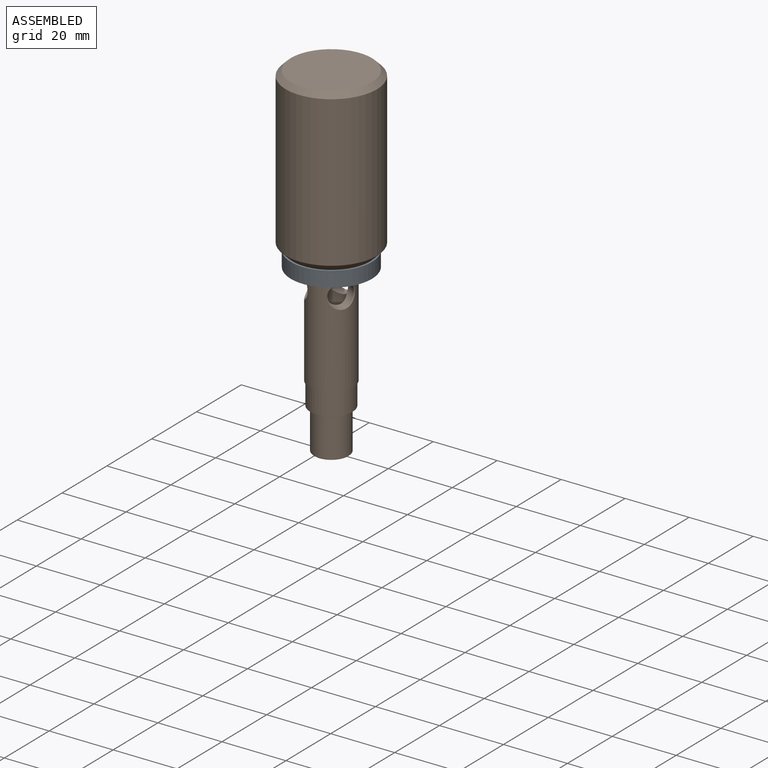
[diagram: assembled view]
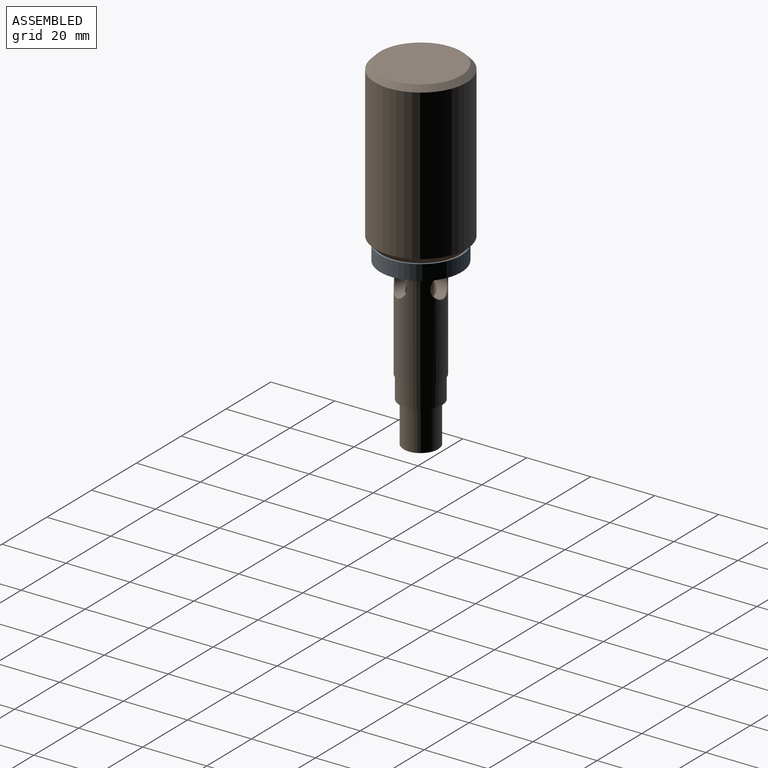
[diagram: assembled view, second angle]
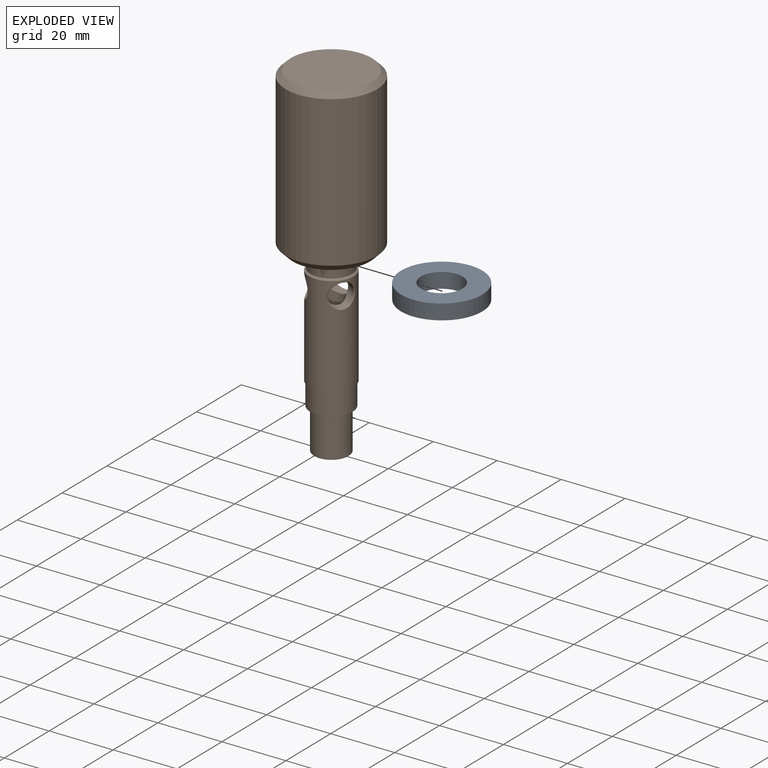
[diagram: exploded view]
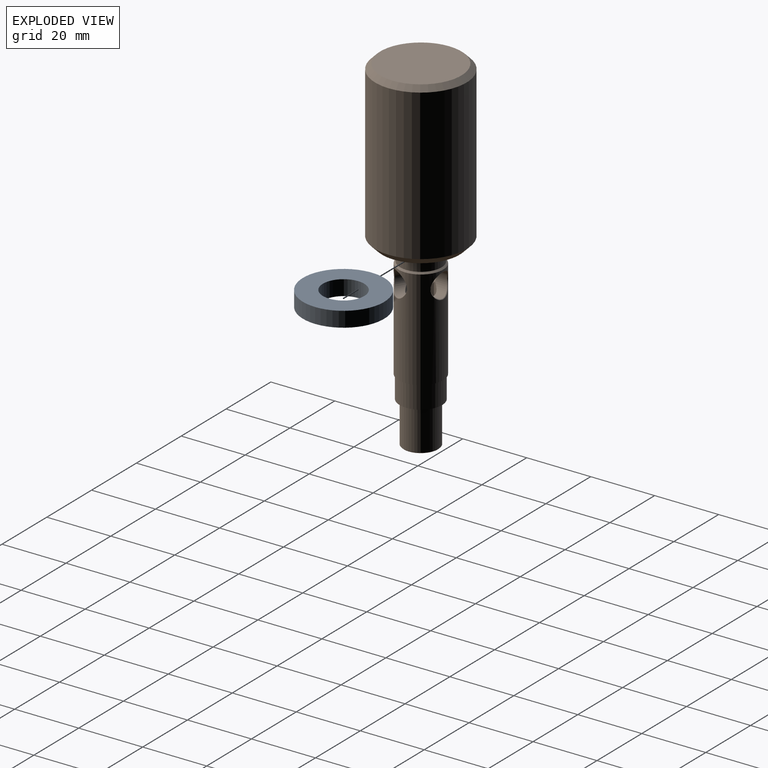
[diagram: exploded view, second angle]
ASSEMBLY  parts=2 mates=2
PART A: 4 faces, bbox 25.4x25.4x4.8 mm
  f0: plane 25.4x25.4mm, normal (0,0,1), area 374.9mm2, adj f1,f3
  f1: cylinder r=6.48mm len=12.95mm, axis (0,0,1), area 194.3mm2, adj f0,f2
  f2: plane 25.4x25.4mm, normal (0,0,-1), area 374.9mm2, adj f1,f3
  f3: cylinder r=12.7mm len=25.4mm, axis (0,0,1), area 381mm2, adj f0,f2
PART B: 37 faces, bbox 29x29x108.1 mm
  f0: cylinder r=14.29mm len=47.05mm, axis (0,0,1), area 4224mm2, adj f32,f33
  f1: plane 24.26x24.26mm, normal (0,0,-1), area 244.7mm2, adj f4,f33
  f2: plane 25.4x25.4mm, normal (0,0,1), area 506.7mm2, adj f32
  f3: plane 14.1x14.1mm, normal (0,0,-1), area 24.3mm2, adj f4,f5
  f4: cone r=7.05mm half-angle=45deg, axis (0,0,1), area 86.7mm2, adj f1,f3
  f5: cylinder r=6.48mm len=12.95mm, axis (0,0,1), area 155.1mm2, adj f3,f36
  f6: cylinder r=6.99mm len=31.24mm, axis (0,0,1), area 1220.7mm2, adj f7,f15,f16,f17,f36
  f7: plane 13.97x13.97mm, normal (0,0,-1), area 14.1mm2, adj f6,f8
  f8: cylinder r=6.65mm len=13.31mm, axis (0,0,1), area 297.4mm2, adj f7,f9
  f9: plane 13.31x13.31mm, normal (0,0,-1), area 45.4mm2, adj f8,f10
  f10: cylinder r=5.46mm len=12.73mm, axis (0,0,1), area 436.6mm2, adj f9,f34
  f11: plane 10.57x10.57mm, normal (0,0,-1), area 32.8mm2, adj f34,f35
  f12: cylinder r=3.73mm len=7.47mm, axis (0,-1,0), area 80.7mm2, adj f13,f14,f15,f18,f20,f21,f25,f26
  f13: cylinder r=3.73mm len=8.89mm, axis (-0.87,0.5,0), area 78.5mm2, adj f12,f14,f16,f18,f20,f22,f23,f31
  f14: cylinder r=3.73mm len=8.89mm, axis (0.87,0.5,0), area 78.4mm2, adj f12,f13,f17,f18,f21,f22,f28,f29
  f15: bspline ~7.9x7.74mm, area 5.5mm2, adj f6,f12
  f16: bspline ~7.73x6.84mm, area 5.5mm2, adj f6,f13
  f17: bspline ~7.75x6.85mm, area 5.5mm2, adj f6,f14
  f18: cylinder r=4mm len=45.19mm, axis (0,0,-1), area 1105.6mm2, adj f12,f13,f14,f35
  f19: plane 7.33x7.14mm, normal (0,0,-1), area 29.6mm2, adj f23,f24,f25,f26,f27,f28,f29,f30
  f20: cylinder r=4mm len=1.85mm, axis (0,0,-1), area 1.2mm2, adj f12,f13,f24
  f21: cylinder r=4mm len=1.85mm, axis (0,0,-1), area 1.2mm2, adj f12,f14,f27
  f22: cylinder r=4mm len=2.13mm, axis (0,0,-1), area 1.2mm2, adj f13,f14,f30
  f23: bspline ~3.26x1.48mm, area 1.8mm2, adj f13,f19,f24
  f24: torus R=2.73mm, axis (0,0,1), area 3.8mm2, adj f19,f20,f23,f25
  f25: bspline ~3.11x2.28mm, area 1.8mm2, adj f12,f19,f24
  f26: bspline ~3.11x2.27mm, area 1.8mm2, adj f12,f19,f27
  f27: torus R=2.73mm, axis (0,0,1), area 3.8mm2, adj f19,f21,f26,f28
  f28: bspline ~3.27x1.48mm, area 1.8mm2, adj f14,f19,f27
  f29: bspline ~3.05x2.12mm, area 1.8mm2, adj f14,f19,f30
  f30: torus R=2.73mm, axis (0,0,1), area 3.8mm2, adj f19,f22,f29,f31
  f31: bspline ~3.06x2.11mm, area 1.8mm2, adj f13,f19,f30
  f32: cone r=12.7mm half-angle=45deg, axis (0,0,-1), area 190.3mm2, adj f0,f2
  f33: cone r=14.29mm half-angle=45deg, axis (0,0,1), area 253.4mm2, adj f0,f1
  f34: cone r=5.28mm half-angle=45deg, axis (0,0,1), area 8.5mm2, adj f10,f11
  f35: cone r=4mm half-angle=45deg, axis (0,0,-1), area 6.5mm2, adj f11,f18
  f36: cone r=6.99mm half-angle=45deg, axis (0,0,-1), area 30.4mm2, adj f5,f6
PLACE A t=(-40.98,-49.73,-28.21)mm
PLACE B t=(-40.98,-49.73,22.59)mm
MATE cylindrical A.f1 <-> B.f0  axis (0,0,1) through (-40.98,-49.73,-28.21)mm
MATE planar A.f1 <-> B.f0  axis (0,0,1) through (-40.98,-49.73,-28.21)mm
